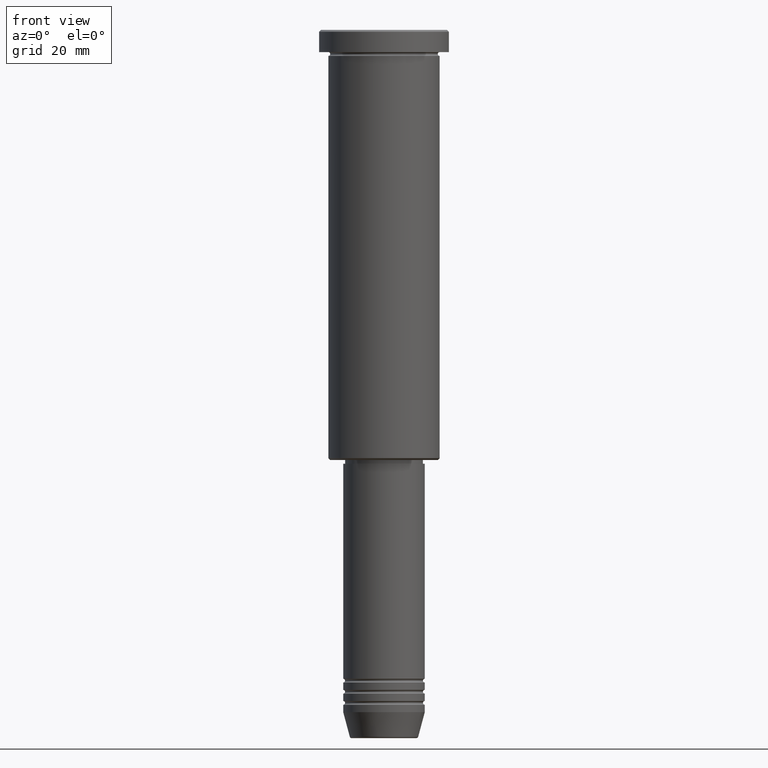
[diagram: clean part render]
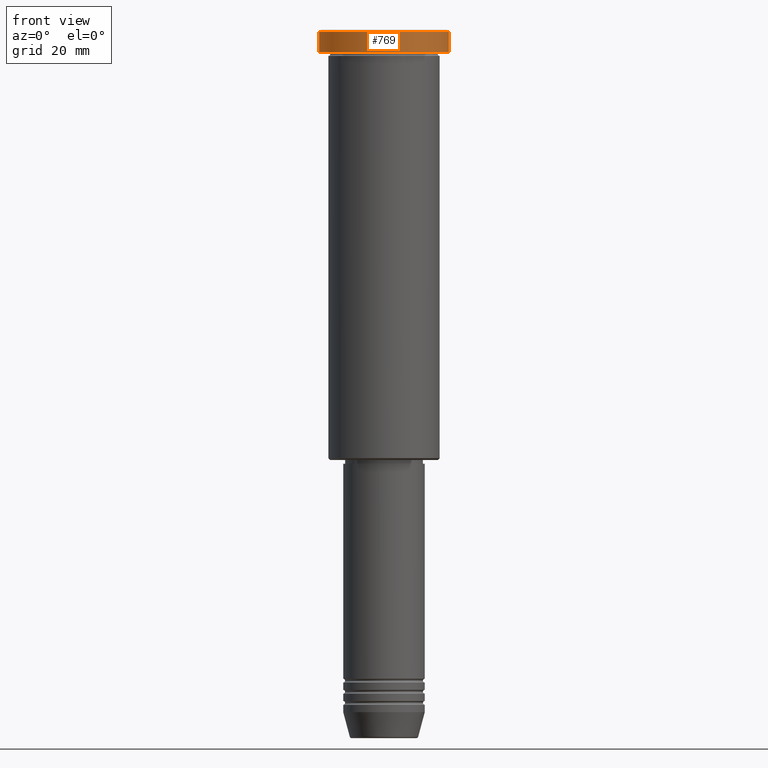
[diagram: same view with one face highlighted and labeled with its STEP entity id]
A machine part, front view. The second image highlights one B-rep face of the part: STEP entity #769.
In plain terms, the highlighted cylindrical surface (partial cylindrical patch) has radius 17.5 mm, axis along (-0, -0, 1).
Its self-contained STEP definition (entity closure, byte-faithful):
#35 = CYLINDRICAL_SURFACE ( 'NONE', #998, 17.50000000000000000 ) ;
#39 = EDGE_LOOP ( 'NONE', ( #928, #1143, #1106, #1098 ) ) ;
#57 = EDGE_CURVE ( 'NONE', #321, #840, #779, .T. ) ;
#107 = CARTESIAN_POINT ( 'NONE',  ( 17.50000000000000000, 0.000000000000000000, 0.000000000000000000 ) ) ;
#118 = DIRECTION ( 'NONE',  ( 1.000000000000000000, 0.000000000000000000, 0.000000000000000000 ) ) ;
#148 = CARTESIAN_POINT ( 'NONE',  ( -17.50000000000000000, 2.143131898507868248E-15, -5.999999999999995559 ) ) ;
#151 = FACE_OUTER_BOUND ( 'NONE', #39, .T. ) ;
#241 = CIRCLE ( 'NONE', #999, 17.50000000000000000 ) ;
#251 = DIRECTION ( 'NONE',  ( 1.000000000000000000, 0.000000000000000000, 0.000000000000000000 ) ) ;
#269 = EDGE_CURVE ( 'NONE', #321, #369, #298, .T. ) ;
#298 = CIRCLE ( 'NONE', #620, 17.50000000000000000 ) ;
#299 = DIRECTION ( 'NONE',  ( -0.000000000000000000, -0.000000000000000000, 1.000000000000000000 ) ) ;
#304 = CARTESIAN_POINT ( 'NONE',  ( 0.000000000000000000, 0.000000000000000000, -5.999999999999995559 ) ) ;
#319 = EDGE_CURVE ( 'NONE', #369, #1032, #394, .T. ) ;
#321 = VERTEX_POINT ( 'NONE', #148 ) ;
#328 = CARTESIAN_POINT ( 'NONE',  ( 0.000000000000000000, 0.000000000000000000, -0.5000000000000003331 ) ) ;
#336 = CARTESIAN_POINT ( 'NONE',  ( -17.50000000000000000, 2.143131898507868248E-15, -0.5000000000000003331 ) ) ;
#369 = VERTEX_POINT ( 'NONE', #694 ) ;
#394 = LINE ( 'NONE', #107, #741 ) ;
#417 = DIRECTION ( 'NONE',  ( -0.000000000000000000, -0.000000000000000000, 1.000000000000000000 ) ) ;
#558 = CARTESIAN_POINT ( 'NONE',  ( 17.50000000000000000, 0.000000000000000000, -0.5000000000000003331 ) ) ;
#573 = DIRECTION ( 'NONE',  ( -0.000000000000000000, -0.000000000000000000, 1.000000000000000000 ) ) ;
#620 = AXIS2_PLACEMENT_3D ( 'NONE', #304, #299, #946 ) ;
#659 = DIRECTION ( 'NONE',  ( -0.000000000000000000, -0.000000000000000000, 1.000000000000000000 ) ) ;
#694 = CARTESIAN_POINT ( 'NONE',  ( 17.50000000000000000, 0.000000000000000000, -5.999999999999995559 ) ) ;
#741 = VECTOR ( 'NONE', #573, 1000.000000000000000 ) ;
#769 = ADVANCED_FACE ( 'NONE', ( #151 ), #35, .T. ) ;
#779 = LINE ( 'NONE', #1059, #1116 ) ;
#840 = VERTEX_POINT ( 'NONE', #336 ) ;
#928 = ORIENTED_EDGE ( 'NONE', *, *, #57, .F. ) ;
#946 = DIRECTION ( 'NONE',  ( 1.000000000000000000, 0.000000000000000000, 0.000000000000000000 ) ) ;
#998 = AXIS2_PLACEMENT_3D ( 'NONE', #1014, #659, #118 ) ;
#999 = AXIS2_PLACEMENT_3D ( 'NONE', #328, #1056, #251 ) ;
#1014 = CARTESIAN_POINT ( 'NONE',  ( 0.000000000000000000, 0.000000000000000000, 0.000000000000000000 ) ) ;
#1030 = EDGE_CURVE ( 'NONE', #1032, #840, #241, .T. ) ;
#1032 = VERTEX_POINT ( 'NONE', #558 ) ;
#1056 = DIRECTION ( 'NONE',  ( 0.000000000000000000, 0.000000000000000000, -1.000000000000000000 ) ) ;
#1059 = CARTESIAN_POINT ( 'NONE',  ( -17.50000000000000000, 2.143131898507868248E-15, 0.000000000000000000 ) ) ;
#1098 = ORIENTED_EDGE ( 'NONE', *, *, #1030, .T. ) ;
#1106 = ORIENTED_EDGE ( 'NONE', *, *, #319, .T. ) ;
#1116 = VECTOR ( 'NONE', #417, 1000.000000000000000 ) ;
#1143 = ORIENTED_EDGE ( 'NONE', *, *, #269, .T. ) ;